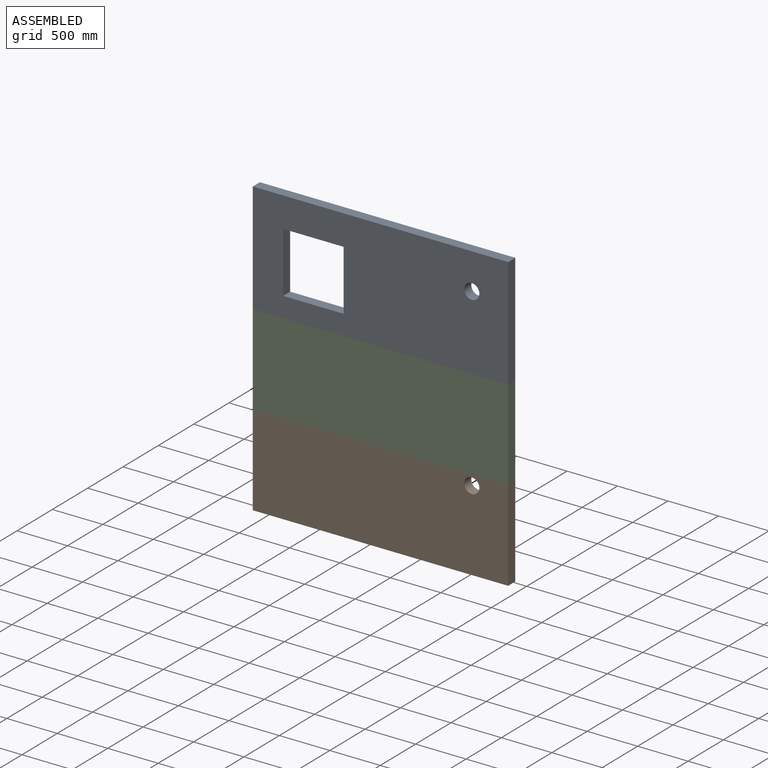
[diagram: assembled view]
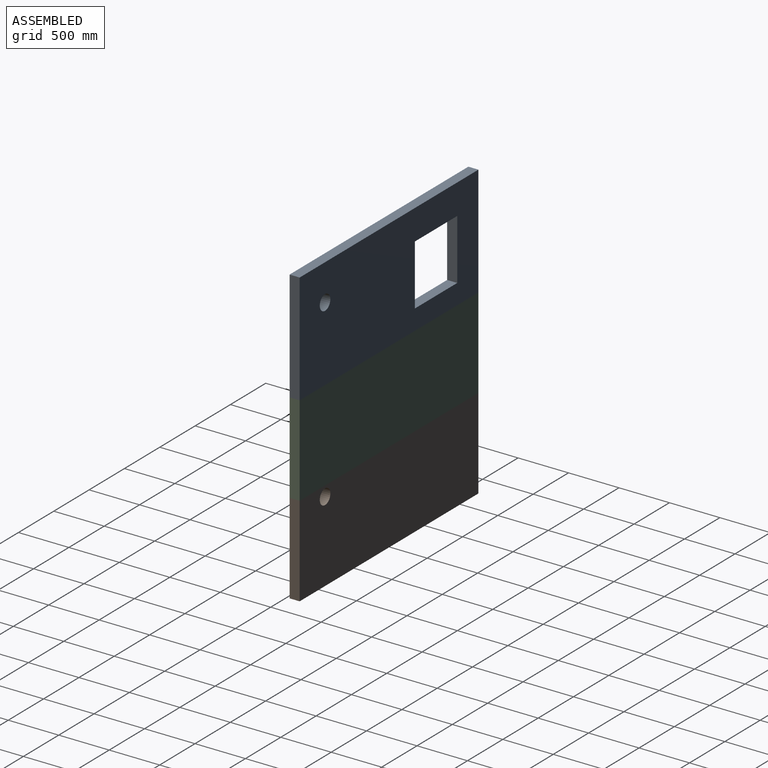
[diagram: assembled view, second angle]
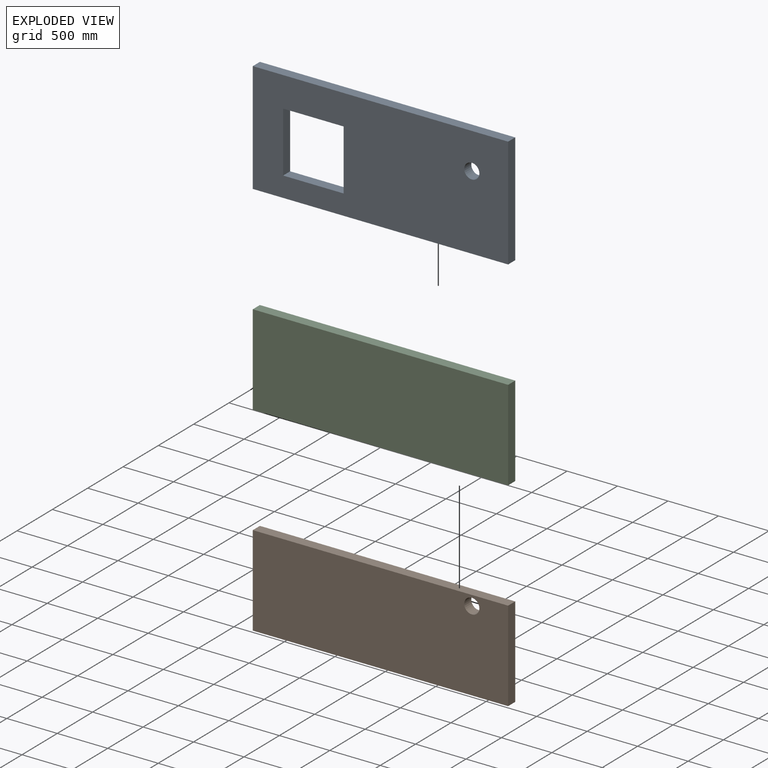
[diagram: exploded view]
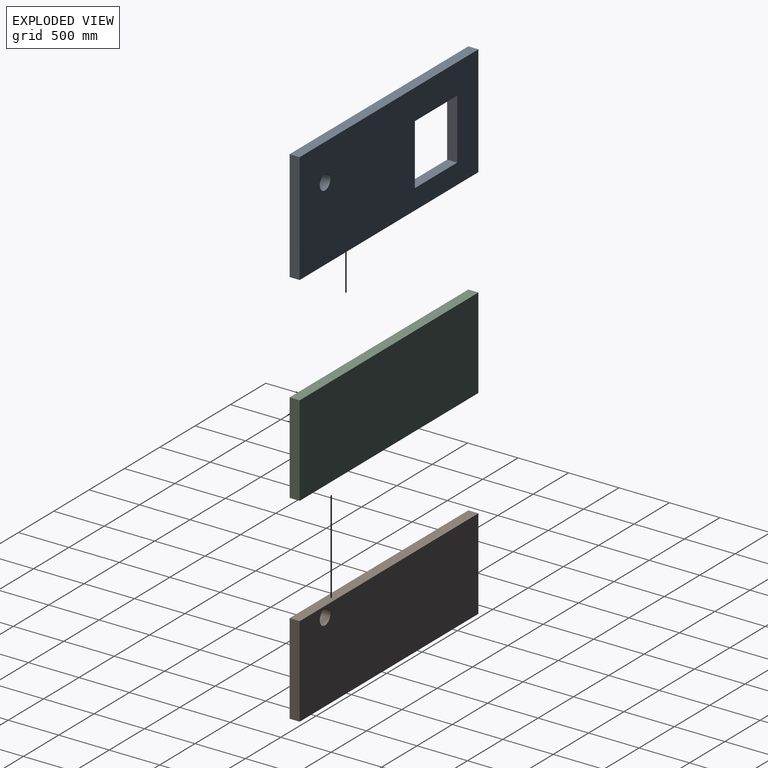
[diagram: exploded view, second angle]
ASSEMBLY  parts=3 mates=2
PART A: 11 faces, bbox 2530x100x1100 mm
  f0: plane 2530x100mm, normal (0,0,1), area 253000mm2, adj f1,f8,f9,f10
  f1: plane 1100x100mm, normal (-1,0,0), area 110000mm2, adj f0,f2,f9,f10
  f2: plane 2530x100mm, normal (0,0,-1), area 253000mm2, adj f1,f8,f9,f10
  f3: plane 600x100mm, normal (1,0,0), area 60000mm2, adj f4,f6,f9,f10
  f4: plane 600x100mm, normal (0,0,-1), area 60000mm2, adj f3,f5,f9,f10
  f5: plane 600x100mm, normal (-1,0,0), area 60000mm2, adj f4,f6,f9,f10
  f6: plane 600x100mm, normal (0,0,1), area 60000mm2, adj f3,f5,f9,f10
  f7: cylinder r=75mm len=150mm, axis (0,1,0), area 47123.9mm2, adj f9,f10
  f8: plane 1100x100mm, normal (1,0,0), area 110000mm2, adj f0,f2,f9,f10
  f9: plane 2530x1100mm, normal (0,-1,0), area 2405328.5mm2, adj f0,f1,f2,f3,f4,f5,f6,f7
  f10: plane 2530x1100mm, normal (0,1,0), area 2405328.5mm2, adj f0,f1,f2,f3,f4,f5,f6,f7
PART B: 7 faces, bbox 2530x100x900 mm
  f0: plane 2530x100mm, normal (0,0,1), area 253000mm2, adj f1,f4,f5,f6
  f1: plane 900x100mm, normal (-1,0,0), area 90000mm2, adj f0,f2,f5,f6
  f2: plane 2530x100mm, normal (0,0,-1), area 253000mm2, adj f1,f4,f5,f6
  f3: cylinder r=75mm len=150mm, axis (0,1,0), area 47123.9mm2, adj f5,f6
  f4: plane 900x100mm, normal (1,0,0), area 90000mm2, adj f0,f2,f5,f6
  f5: plane 2530x900mm, normal (0,-1,0), area 2259328.5mm2, adj f0,f1,f2,f3,f4
  f6: plane 2530x900mm, normal (0,1,0), area 2259328.5mm2, adj f0,f1,f2,f3,f4
PART C: 6 faces, bbox 2530x100x900 mm
  f0: plane 2530x100mm, normal (0,0,1), area 253000mm2, adj f1,f3,f4,f5
  f1: plane 900x100mm, normal (-1,0,0), area 90000mm2, adj f0,f2,f4,f5
  f2: plane 2530x100mm, normal (0,0,-1), area 253000mm2, adj f1,f3,f4,f5
  f3: plane 900x100mm, normal (1,0,0), area 90000mm2, adj f0,f2,f4,f5
  f4: plane 2530x900mm, normal (0,-1,0), area 2277000mm2, adj f0,f1,f2,f3
  f5: plane 2530x900mm, normal (0,1,0), area 2277000mm2, adj f0,f1,f2,f3
PLACE A t=(-278.5,525.88,1394.36)mm
PLACE B t=(-261.03,525.88,-605.64)mm
PLACE C t=(-261.03,525.88,294.36)mm
MATE fastened A.f2 <-> C.f0  axis (0,0,-1) through (1003.97,475.88,294.36)mm
MATE fastened B.f0 <-> C.f2  axis (0,0,1) through (1003.97,475.88,-605.64)mm
